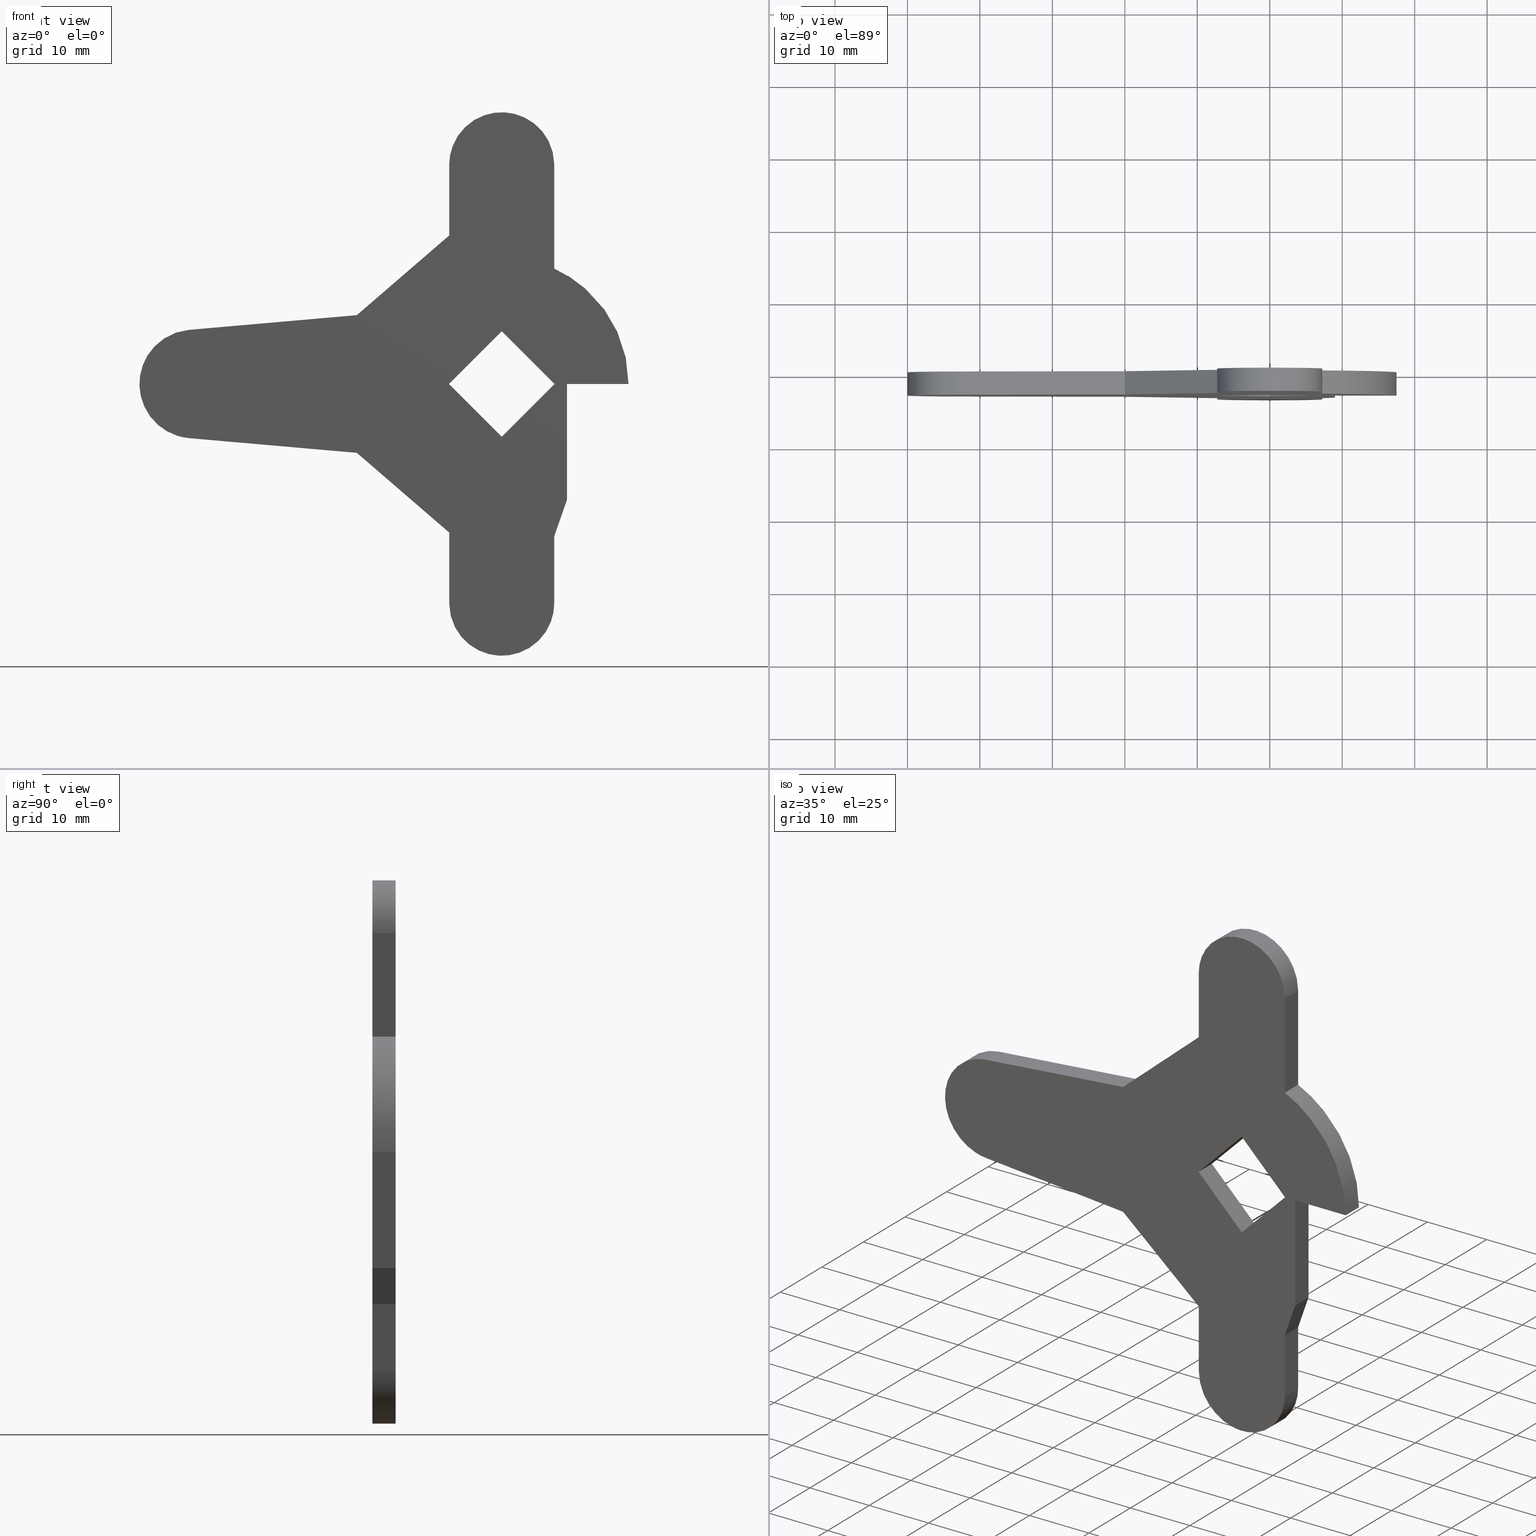
[diagram: canonical four-view strip — front | top / right | iso, engineering-drawing reading convention]
A machine part, canonical four-view strip (front | top / right | iso — engineering-drawing reading convention). The complete STEP part file that produces these views, byte-faithful:
ISO-10303-21;
HEADER;
/****************************************************************
 * Generated by software with PDE/Lib inside                    *
 * PDElib Version 4.4.1-0003, patched  Thursday August 19 11:58 *
 * International Technegroup Inc. (www.iti-oh.com)              *
 ****************************************************************/
FILE_DESCRIPTION((''),'2;1');
FILE_NAME('','2005-10-12T14:38:44',(''),(''),'','CADfix','');
FILE_SCHEMA(('AUTOMOTIVE_DESIGN'));
ENDSEC;
DATA;
#5=APPLICATION_CONTEXT('automotive design');
#6=APPLICATION_PROTOCOL_DEFINITION('Draft International Standard','automotive_design',1998,#5);
#7=PRODUCT_CONTEXT('None',#5,'mechanical');
#8=PRODUCT('cam','','None',(#7));
#9=PRODUCT_RELATED_PRODUCT_CATEGORY('part','description',(#8));
#10=PRODUCT_DEFINITION_FORMATION('None','None',#8);
#11=PRODUCT_DEFINITION_CONTEXT('part definition',#5,'design');
#12=PRODUCT_DEFINITION('None','None',#10,#11);
#18=(NAMED_UNIT(*)PLANE_ANGLE_UNIT()SI_UNIT($,.RADIAN.));
#19=DIMENSIONAL_EXPONENTS(0.0,0.0,0.0,0.0,0.0,0.0,0.0);
#20=PLANE_ANGLE_MEASURE_WITH_UNIT(PLANE_ANGLE_MEASURE(0.017453292500000),#18);
#24=(CONVERSION_BASED_UNIT('DEGREE',#20)NAMED_UNIT(#19)PLANE_ANGLE_UNIT());
#28=(NAMED_UNIT(*)SI_UNIT($,.STERADIAN.)SOLID_ANGLE_UNIT());
#32=(LENGTH_UNIT()NAMED_UNIT(*)SI_UNIT(.MILLI.,.METRE.));
#34=UNCERTAINTY_MEASURE_WITH_UNIT(LENGTH_MEASURE(0.001000000000000),#32,'DISTANCE_ACCURACY_VALUE','');
#36=(GEOMETRIC_REPRESENTATION_CONTEXT(3)GLOBAL_UNCERTAINTY_ASSIGNED_CONTEXT((#34))GLOBAL_UNIT_ASSIGNED_CONTEXT((#24,#28,#32))REPRESENTATION_CONTEXT('None','None'));
#37=AXIS2_PLACEMENT_3D('',#38,#39,#40);
#38=CARTESIAN_POINT('',(0.0,0.0,0.0));
#39=DIRECTION('',(0.0,0.0,1.0));
#40=DIRECTION('',(1.0,0.0,0.0));
#41=ADVANCED_BREP_SHAPE_REPRESENTATION('',(#37,#759),#36);
#42=PRODUCT_DEFINITION_SHAPE('','',#12);
#43=SHAPE_DEFINITION_REPRESENTATION(#42,#41);
#44=CARTESIAN_POINT('',(-53.371669325223742,0.0,41.246249854635423));
#45=CARTESIAN_POINT('',(20.871628794602639,0.0,41.246249854635423));
#46=CARTESIAN_POINT('',(-53.371669325223742,0.0,-41.246251866292177));
#47=CARTESIAN_POINT('',(20.871628794602639,0.0,-41.246251866292177));
#48=B_SPLINE_SURFACE_WITH_KNOTS('',1,1,((#44,#46),(#45,#47)),.UNSPECIFIED.,.F.,.F.,.U.,(2,2),(2,2),(0.0,74.243298119826378),(0.0,82.492501720927606),.UNSPECIFIED.);
#49=CARTESIAN_POINT('',(-20.0,0.0,9.500000000000000));
#50=VERTEX_POINT('',#49);
#51=CARTESIAN_POINT('',(-43.154600000000002,0.0,7.471399999999999));
#52=VERTEX_POINT('',#51);
#53=CARTESIAN_POINT('',(-20.0,0.0,9.500000000000000));
#54=CARTESIAN_POINT('',(-43.154600000000002,0.0,7.471399999999999));
#55=QUASI_UNIFORM_CURVE('',1,(#53,#54),.UNSPECIFIED.,.F.,.U.);
#56=EDGE_CURVE('',#50,#52,#55,.T.);
#57=ORIENTED_EDGE('',*,*,#56,.F.);
#58=CARTESIAN_POINT('',(-7.250000000000100,0.0,20.500000000000000));
#59=VERTEX_POINT('',#58);
#60=CARTESIAN_POINT('',(-7.250000000000100,0.0,20.500000000000000));
#61=CARTESIAN_POINT('',(-20.0,0.0,9.500000000000000));
#62=QUASI_UNIFORM_CURVE('',1,(#60,#61),.UNSPECIFIED.,.F.,.U.);
#63=EDGE_CURVE('',#59,#50,#62,.T.);
#64=ORIENTED_EDGE('',*,*,#63,.F.);
#65=CARTESIAN_POINT('',(-7.250000000000000,0.0,30.250000000000000));
#66=VERTEX_POINT('',#65);
#67=CARTESIAN_POINT('',(-7.250000000000000,0.0,30.250000000000000));
#68=CARTESIAN_POINT('',(-7.250000000000100,0.0,20.500000000000000));
#69=QUASI_UNIFORM_CURVE('',1,(#67,#68),.UNSPECIFIED.,.F.,.U.);
#70=EDGE_CURVE('',#66,#59,#69,.T.);
#71=ORIENTED_EDGE('',*,*,#70,.F.);
#72=CARTESIAN_POINT('',(7.250000000000000,0.0,30.250000000000000));
#73=VERTEX_POINT('',#72);
#74=CARTESIAN_POINT('',(7.250000000000000,0.0,30.250000000000000));
#75=CARTESIAN_POINT('',(7.250000000000000,0.0,37.499999999999993));
#76=CARTESIAN_POINT('',(0.0,0.0,37.500000000000000));
#77=CARTESIAN_POINT('',(-7.250000000000000,0.0,37.499999999999993));
#78=CARTESIAN_POINT('',(-7.250000000000000,0.0,30.250000000000000));
#86=(BOUNDED_CURVE()B_SPLINE_CURVE(2,(#74,#75,#76,#77,#78),.UNSPECIFIED.,.F.,.U.)B_SPLINE_CURVE_WITH_KNOTS((3,2,3),(0.0,0.500000000000000,1.0),.UNSPECIFIED.)CURVE()GEOMETRIC_REPRESENTATION_ITEM()RATIONAL_B_SPLINE_CURVE((1.0,0.707106781186548,1.0,0.707106781186548,1.0))REPRESENTATION_ITEM(''));
#87=EDGE_CURVE('',#73,#66,#86,.T.);
#88=ORIENTED_EDGE('',*,*,#87,.F.);
#89=CARTESIAN_POINT('',(7.250000000000000,0.0,15.927570436196500));
#90=VERTEX_POINT('',#89);
#91=CARTESIAN_POINT('',(7.250000000000000,0.0,15.927570436196500));
#92=CARTESIAN_POINT('',(7.250000000000000,0.0,30.250000000000000));
#93=QUASI_UNIFORM_CURVE('',1,(#91,#92),.UNSPECIFIED.,.F.,.U.);
#94=EDGE_CURVE('',#90,#73,#93,.T.);
#95=ORIENTED_EDGE('',*,*,#94,.F.);
#96=CARTESIAN_POINT('',(17.500000000000000,0.0,0.0));
#97=VERTEX_POINT('',#96);
#98=CARTESIAN_POINT('',(17.500000000000000,0.0,0.0));
#99=CARTESIAN_POINT('',(17.500000000000004,0.0,11.261918490239934));
#100=CARTESIAN_POINT('',(7.250000000000001,0.0,15.927570436196479));
#108=(BOUNDED_CURVE()B_SPLINE_CURVE(2,(#98,#99,#100),.UNSPECIFIED.,.F.,.U.)CURVE()GEOMETRIC_REPRESENTATION_ITEM()QUASI_UNIFORM_CURVE()RATIONAL_B_SPLINE_CURVE((1.0,0.840917865872082,1.0))REPRESENTATION_ITEM(''));
#109=EDGE_CURVE('',#97,#90,#108,.T.);
#110=ORIENTED_EDGE('',*,*,#109,.F.);
#111=CARTESIAN_POINT('',(8.999999999999799,0.0,0.0));
#112=VERTEX_POINT('',#111);
#113=CARTESIAN_POINT('',(8.999999999999799,0.0,0.0));
#114=CARTESIAN_POINT('',(17.500000000000000,0.0,0.0));
#115=QUASI_UNIFORM_CURVE('',1,(#113,#114),.UNSPECIFIED.,.F.,.U.);
#116=EDGE_CURVE('',#112,#97,#115,.T.);
#117=ORIENTED_EDGE('',*,*,#116,.F.);
#118=CARTESIAN_POINT('',(8.999999999999799,0.0,-16.0));
#119=VERTEX_POINT('',#118);
#120=CARTESIAN_POINT('',(8.999999999999799,0.0,-16.0));
#121=CARTESIAN_POINT('',(8.999999999999799,0.0,0.0));
#122=QUASI_UNIFORM_CURVE('',1,(#120,#121),.UNSPECIFIED.,.F.,.U.);
#123=EDGE_CURVE('',#119,#112,#122,.T.);
#124=ORIENTED_EDGE('',*,*,#123,.F.);
#125=CARTESIAN_POINT('',(7.250000000000000,0.0,-21.0));
#126=VERTEX_POINT('',#125);
#127=CARTESIAN_POINT('',(7.250000000000000,0.0,-21.0));
#128=CARTESIAN_POINT('',(8.999999999999799,0.0,-16.0));
#129=QUASI_UNIFORM_CURVE('',1,(#127,#128),.UNSPECIFIED.,.F.,.U.);
#130=EDGE_CURVE('',#126,#119,#129,.T.);
#131=ORIENTED_EDGE('',*,*,#130,.F.);
#132=CARTESIAN_POINT('',(7.250000000000000,0.0,-30.250000000000000));
#133=VERTEX_POINT('',#132);
#134=CARTESIAN_POINT('',(7.250000000000000,0.0,-30.250000000000000));
#135=CARTESIAN_POINT('',(7.250000000000000,0.0,-21.0));
#136=QUASI_UNIFORM_CURVE('',1,(#134,#135),.UNSPECIFIED.,.F.,.U.);
#137=EDGE_CURVE('',#133,#126,#136,.T.);
#138=ORIENTED_EDGE('',*,*,#137,.F.);
#139=CARTESIAN_POINT('',(-7.250000000000100,0.0,-30.250000000000000));
#140=VERTEX_POINT('',#139);
#141=CARTESIAN_POINT('',(-7.250000000000000,0.0,-30.250000000000000));
#142=CARTESIAN_POINT('',(-7.250000000000000,0.0,-37.499999999999993));
#143=CARTESIAN_POINT('',(0.0,0.0,-37.500000000000000));
#144=CARTESIAN_POINT('',(7.250000000000000,0.0,-37.499999999999993));
#145=CARTESIAN_POINT('',(7.250000000000000,0.0,-30.250000000000000));
#153=(BOUNDED_CURVE()B_SPLINE_CURVE(2,(#141,#142,#143,#144,#145),.UNSPECIFIED.,.F.,.U.)B_SPLINE_CURVE_WITH_KNOTS((3,2,3),(0.0,0.500000000000000,1.0),.UNSPECIFIED.)CURVE()GEOMETRIC_REPRESENTATION_ITEM()RATIONAL_B_SPLINE_CURVE((1.0,0.707106781186548,1.0,0.707106781186548,1.0))REPRESENTATION_ITEM(''));
#154=EDGE_CURVE('',#140,#133,#153,.T.);
#155=ORIENTED_EDGE('',*,*,#154,.F.);
#156=CARTESIAN_POINT('',(-7.250000000000100,0.0,-20.500000000000000));
#157=VERTEX_POINT('',#156);
#158=CARTESIAN_POINT('',(-7.250000000000100,0.0,-20.500000000000000));
#159=CARTESIAN_POINT('',(-7.250000000000100,0.0,-30.250000000000000));
#160=QUASI_UNIFORM_CURVE('',1,(#158,#159),.UNSPECIFIED.,.F.,.U.);
#161=EDGE_CURVE('',#157,#140,#160,.T.);
#162=ORIENTED_EDGE('',*,*,#161,.F.);
#163=CARTESIAN_POINT('',(-20.0,0.0,-9.500000000000000));
#164=VERTEX_POINT('',#163);
#165=CARTESIAN_POINT('',(-20.0,0.0,-9.500000000000000));
#166=CARTESIAN_POINT('',(-7.250000000000100,0.0,-20.500000000000000));
#167=QUASI_UNIFORM_CURVE('',1,(#165,#166),.UNSPECIFIED.,.F.,.U.);
#168=EDGE_CURVE('',#164,#157,#167,.T.);
#169=ORIENTED_EDGE('',*,*,#168,.F.);
#170=CARTESIAN_POINT('',(-43.154599881245602,0.0,-7.471400010404210));
#171=VERTEX_POINT('',#170);
#172=CARTESIAN_POINT('',(-43.154599881245602,0.0,-7.471400010404210));
#173=CARTESIAN_POINT('',(-20.0,0.0,-9.500000000000000));
#174=QUASI_UNIFORM_CURVE('',1,(#172,#173),.UNSPECIFIED.,.F.,.U.);
#175=EDGE_CURVE('',#171,#164,#174,.T.);
#176=ORIENTED_EDGE('',*,*,#175,.F.);
#177=CARTESIAN_POINT('',(-43.154600000000002,0.0,7.471399999999992));
#178=CARTESIAN_POINT('',(-50.000041792226938,0.0,6.871663307519408));
#179=CARTESIAN_POINT('',(-50.000041737616002,0.0,-0.000000059604654));
#180=CARTESIAN_POINT('',(-50.000041683005072,0.0,-6.871663426728710));
#181=CARTESIAN_POINT('',(-43.154599881245602,0.0,-7.471400010404211));
#189=(BOUNDED_CURVE()B_SPLINE_CURVE(2,(#177,#178,#179,#180,#181),.UNSPECIFIED.,.F.,.U.)B_SPLINE_CURVE_WITH_KNOTS((3,2,3),(0.0,0.500000000000000,1.0),.UNSPECIFIED.)CURVE()GEOMETRIC_REPRESENTATION_ITEM()RATIONAL_B_SPLINE_CURVE((1.0,0.737318376952824,1.0,0.737318376952824,1.0))REPRESENTATION_ITEM(''));
#190=EDGE_CURVE('',#52,#171,#189,.T.);
#191=ORIENTED_EDGE('',*,*,#190,.F.);
#192=EDGE_LOOP('',(#57,#64,#71,#88,#95,#110,#117,#124,#131,#138,#155,#162,#169,#176,#191));
#193=FACE_OUTER_BOUND('',#192,.T.);
#194=CARTESIAN_POINT('',(-7.283200000000000,0.0,0.0));
#195=VERTEX_POINT('',#194);
#196=CARTESIAN_POINT('',(0.0,0.0,-7.283200000000000));
#197=VERTEX_POINT('',#196);
#198=CARTESIAN_POINT('',(-7.283200000000000,0.0,0.0));
#199=CARTESIAN_POINT('',(0.0,0.0,-7.283200000000000));
#200=QUASI_UNIFORM_CURVE('',1,(#198,#199),.UNSPECIFIED.,.F.,.U.);
#201=EDGE_CURVE('',#195,#197,#200,.T.);
#202=ORIENTED_EDGE('',*,*,#201,.T.);
#203=CARTESIAN_POINT('',(7.283199999999890,0.0,0.0));
#204=VERTEX_POINT('',#203);
#205=CARTESIAN_POINT('',(0.0,0.0,-7.283200000000000));
#206=CARTESIAN_POINT('',(7.283199999999890,0.0,0.0));
#207=QUASI_UNIFORM_CURVE('',1,(#205,#206),.UNSPECIFIED.,.F.,.U.);
#208=EDGE_CURVE('',#197,#204,#207,.T.);
#209=ORIENTED_EDGE('',*,*,#208,.T.);
#210=CARTESIAN_POINT('',(0.0,0.0,7.283200000000000));
#211=VERTEX_POINT('',#210);
#212=CARTESIAN_POINT('',(7.283199999999890,0.0,0.0));
#213=CARTESIAN_POINT('',(0.0,0.0,7.283200000000000));
#214=QUASI_UNIFORM_CURVE('',1,(#212,#213),.UNSPECIFIED.,.F.,.U.);
#215=EDGE_CURVE('',#204,#211,#214,.T.);
#216=ORIENTED_EDGE('',*,*,#215,.T.);
#217=CARTESIAN_POINT('',(0.0,0.0,7.283200000000000));
#218=CARTESIAN_POINT('',(-7.283200000000000,0.0,0.0));
#219=QUASI_UNIFORM_CURVE('',1,(#217,#218),.UNSPECIFIED.,.F.,.U.);
#220=EDGE_CURVE('',#211,#195,#219,.T.);
#221=ORIENTED_EDGE('',*,*,#220,.T.);
#222=EDGE_LOOP('',(#202,#209,#216,#221));
#223=FACE_BOUND('',#222,.T.);
#224=ADVANCED_FACE('',(#193,#223),#48,.T.);
#225=CARTESIAN_POINT('',(-53.371669325223742,-3.199999999999905,41.246249854635423));
#226=CARTESIAN_POINT('',(20.871628794602639,-3.199999999999905,41.246249854635423));
#227=CARTESIAN_POINT('',(-53.371669325223742,-3.199999999999905,-41.246251866292177));
#228=CARTESIAN_POINT('',(20.871628794602639,-3.199999999999905,-41.246251866292177));
#229=B_SPLINE_SURFACE_WITH_KNOTS('',1,1,((#225,#227),(#226,#228)),.UNSPECIFIED.,.F.,.F.,.U.,(2,2),(2,2),(0.0,74.243298119826378),(0.0,82.492501720927606),.UNSPECIFIED.);
#230=CARTESIAN_POINT('',(-20.0,-3.199999999999870,9.500000000000000));
#231=VERTEX_POINT('',#230);
#232=CARTESIAN_POINT('',(-43.154600000000002,-3.199999999999870,7.471399999999999));
#233=VERTEX_POINT('',#232);
#234=CARTESIAN_POINT('',(-20.0,-3.199999999999870,9.500000000000000));
#235=CARTESIAN_POINT('',(-43.154600000000002,-3.199999999999870,7.471399999999999));
#236=QUASI_UNIFORM_CURVE('',1,(#234,#235),.UNSPECIFIED.,.F.,.U.);
#237=EDGE_CURVE('',#231,#233,#236,.T.);
#238=ORIENTED_EDGE('',*,*,#237,.T.);
#239=CARTESIAN_POINT('',(-43.154599881245602,-3.199999999999870,-7.471400010404210));
#240=VERTEX_POINT('',#239);
#241=CARTESIAN_POINT('',(-43.154600000000002,-3.199999999999870,7.471399999999992));
#242=CARTESIAN_POINT('',(-50.000041792226938,-3.199999999999870,6.871663307519408));
#243=CARTESIAN_POINT('',(-50.000041737616002,-3.199999999999870,-0.000000059604654));
#244=CARTESIAN_POINT('',(-50.000041683005072,-3.199999999999870,-6.871663426728710));
#245=CARTESIAN_POINT('',(-43.154599881245602,-3.199999999999870,-7.471400010404211));
#253=(BOUNDED_CURVE()B_SPLINE_CURVE(2,(#241,#242,#243,#244,#245),.UNSPECIFIED.,.F.,.U.)B_SPLINE_CURVE_WITH_KNOTS((3,2,3),(0.0,0.500000000000000,1.0),.UNSPECIFIED.)CURVE()GEOMETRIC_REPRESENTATION_ITEM()RATIONAL_B_SPLINE_CURVE((1.0,0.737318376952824,1.0,0.737318376952824,1.0))REPRESENTATION_ITEM(''));
#254=EDGE_CURVE('',#233,#240,#253,.T.);
#255=ORIENTED_EDGE('',*,*,#254,.T.);
#256=CARTESIAN_POINT('',(-20.0,-3.199999999999870,-9.500000000000000));
#257=VERTEX_POINT('',#256);
#258=CARTESIAN_POINT('',(-43.154599881245602,-3.199999999999870,-7.471400010404210));
#259=CARTESIAN_POINT('',(-20.0,-3.199999999999870,-9.500000000000000));
#260=QUASI_UNIFORM_CURVE('',1,(#258,#259),.UNSPECIFIED.,.F.,.U.);
#261=EDGE_CURVE('',#240,#257,#260,.T.);
#262=ORIENTED_EDGE('',*,*,#261,.T.);
#263=CARTESIAN_POINT('',(-7.250000000000100,-3.199999999999870,-20.500000000000000));
#264=VERTEX_POINT('',#263);
#265=CARTESIAN_POINT('',(-20.0,-3.199999999999870,-9.500000000000000));
#266=CARTESIAN_POINT('',(-7.250000000000100,-3.199999999999870,-20.500000000000000));
#267=QUASI_UNIFORM_CURVE('',1,(#265,#266),.UNSPECIFIED.,.F.,.U.);
#268=EDGE_CURVE('',#257,#264,#267,.T.);
#269=ORIENTED_EDGE('',*,*,#268,.T.);
#270=CARTESIAN_POINT('',(-7.250000000000100,-3.199999999999870,-30.250000000000000));
#271=VERTEX_POINT('',#270);
#272=CARTESIAN_POINT('',(-7.250000000000100,-3.199999999999870,-20.500000000000000));
#273=CARTESIAN_POINT('',(-7.250000000000100,-3.199999999999870,-30.250000000000000));
#274=QUASI_UNIFORM_CURVE('',1,(#272,#273),.UNSPECIFIED.,.F.,.U.);
#275=EDGE_CURVE('',#264,#271,#274,.T.);
#276=ORIENTED_EDGE('',*,*,#275,.T.);
#277=CARTESIAN_POINT('',(7.250000000000000,-3.199999999999870,-30.250000000000000));
#278=VERTEX_POINT('',#277);
#279=CARTESIAN_POINT('',(-7.250000000000000,-3.199999999999870,-30.250000000000000));
#280=CARTESIAN_POINT('',(-7.250000000000000,-3.199999999999870,-37.499999999999993));
#281=CARTESIAN_POINT('',(0.0,-3.199999999999870,-37.500000000000000));
#282=CARTESIAN_POINT('',(7.250000000000000,-3.199999999999870,-37.499999999999993));
#283=CARTESIAN_POINT('',(7.250000000000000,-3.199999999999870,-30.250000000000000));
#291=(BOUNDED_CURVE()B_SPLINE_CURVE(2,(#279,#280,#281,#282,#283),.UNSPECIFIED.,.F.,.U.)B_SPLINE_CURVE_WITH_KNOTS((3,2,3),(0.0,0.500000000000000,1.0),.UNSPECIFIED.)CURVE()GEOMETRIC_REPRESENTATION_ITEM()RATIONAL_B_SPLINE_CURVE((1.0,0.707106781186548,1.0,0.707106781186548,1.0))REPRESENTATION_ITEM(''));
#292=EDGE_CURVE('',#271,#278,#291,.T.);
#293=ORIENTED_EDGE('',*,*,#292,.T.);
#294=CARTESIAN_POINT('',(7.250000000000000,-3.199999999999870,-21.0));
#295=VERTEX_POINT('',#294);
#296=CARTESIAN_POINT('',(7.250000000000000,-3.199999999999870,-30.250000000000000));
#297=CARTESIAN_POINT('',(7.250000000000000,-3.199999999999870,-21.0));
#298=QUASI_UNIFORM_CURVE('',1,(#296,#297),.UNSPECIFIED.,.F.,.U.);
#299=EDGE_CURVE('',#278,#295,#298,.T.);
#300=ORIENTED_EDGE('',*,*,#299,.T.);
#301=CARTESIAN_POINT('',(8.999999999999799,-3.199999999999870,-16.0));
#302=VERTEX_POINT('',#301);
#303=CARTESIAN_POINT('',(7.250000000000000,-3.199999999999870,-21.0));
#304=CARTESIAN_POINT('',(8.999999999999799,-3.199999999999870,-16.0));
#305=QUASI_UNIFORM_CURVE('',1,(#303,#304),.UNSPECIFIED.,.F.,.U.);
#306=EDGE_CURVE('',#295,#302,#305,.T.);
#307=ORIENTED_EDGE('',*,*,#306,.T.);
#308=CARTESIAN_POINT('',(8.999999999999799,-3.199999999999870,0.0));
#309=VERTEX_POINT('',#308);
#310=CARTESIAN_POINT('',(8.999999999999799,-3.199999999999870,-16.0));
#311=CARTESIAN_POINT('',(8.999999999999799,-3.199999999999870,0.0));
#312=QUASI_UNIFORM_CURVE('',1,(#310,#311),.UNSPECIFIED.,.F.,.U.);
#313=EDGE_CURVE('',#302,#309,#312,.T.);
#314=ORIENTED_EDGE('',*,*,#313,.T.);
#315=CARTESIAN_POINT('',(17.500000000000000,-3.199999999999870,0.0));
#316=VERTEX_POINT('',#315);
#317=CARTESIAN_POINT('',(8.999999999999799,-3.199999999999870,0.0));
#318=CARTESIAN_POINT('',(17.500000000000000,-3.199999999999870,0.0));
#319=QUASI_UNIFORM_CURVE('',1,(#317,#318),.UNSPECIFIED.,.F.,.U.);
#320=EDGE_CURVE('',#309,#316,#319,.T.);
#321=ORIENTED_EDGE('',*,*,#320,.T.);
#322=CARTESIAN_POINT('',(7.250000000000000,-3.199999999999870,15.927570436196500));
#323=VERTEX_POINT('',#322);
#324=CARTESIAN_POINT('',(17.500000000000000,-3.199999999999870,0.0));
#325=CARTESIAN_POINT('',(17.500000000000004,-3.199999999999871,11.261918490239934));
#326=CARTESIAN_POINT('',(7.250000000000001,-3.199999999999870,15.927570436196479));
#334=(BOUNDED_CURVE()B_SPLINE_CURVE(2,(#324,#325,#326),.UNSPECIFIED.,.F.,.U.)CURVE()GEOMETRIC_REPRESENTATION_ITEM()QUASI_UNIFORM_CURVE()RATIONAL_B_SPLINE_CURVE((1.0,0.840917865872082,1.0))REPRESENTATION_ITEM(''));
#335=EDGE_CURVE('',#316,#323,#334,.T.);
#336=ORIENTED_EDGE('',*,*,#335,.T.);
#337=CARTESIAN_POINT('',(7.250000000000000,-3.199999999999870,30.250000000000000));
#338=VERTEX_POINT('',#337);
#339=CARTESIAN_POINT('',(7.250000000000000,-3.199999999999870,15.927570436196500));
#340=CARTESIAN_POINT('',(7.250000000000000,-3.199999999999870,30.250000000000000));
#341=QUASI_UNIFORM_CURVE('',1,(#339,#340),.UNSPECIFIED.,.F.,.U.);
#342=EDGE_CURVE('',#323,#338,#341,.T.);
#343=ORIENTED_EDGE('',*,*,#342,.T.);
#344=CARTESIAN_POINT('',(-7.250000000000000,-3.199999999999870,30.250000000000000));
#345=VERTEX_POINT('',#344);
#346=CARTESIAN_POINT('',(7.250000000000000,-3.199999999999870,30.250000000000000));
#347=CARTESIAN_POINT('',(7.250000000000000,-3.199999999999870,37.499999999999993));
#348=CARTESIAN_POINT('',(0.0,-3.199999999999870,37.500000000000000));
#349=CARTESIAN_POINT('',(-7.250000000000000,-3.199999999999870,37.499999999999993));
#350=CARTESIAN_POINT('',(-7.250000000000000,-3.199999999999870,30.250000000000000));
#358=(BOUNDED_CURVE()B_SPLINE_CURVE(2,(#346,#347,#348,#349,#350),.UNSPECIFIED.,.F.,.U.)B_SPLINE_CURVE_WITH_KNOTS((3,2,3),(0.0,0.500000000000000,1.0),.UNSPECIFIED.)CURVE()GEOMETRIC_REPRESENTATION_ITEM()RATIONAL_B_SPLINE_CURVE((1.0,0.707106781186548,1.0,0.707106781186548,1.0))REPRESENTATION_ITEM(''));
#359=EDGE_CURVE('',#338,#345,#358,.T.);
#360=ORIENTED_EDGE('',*,*,#359,.T.);
#361=CARTESIAN_POINT('',(-7.250000000000100,-3.199999999999870,20.500000000000000));
#362=VERTEX_POINT('',#361);
#363=CARTESIAN_POINT('',(-7.250000000000000,-3.199999999999870,30.250000000000000));
#364=CARTESIAN_POINT('',(-7.250000000000100,-3.199999999999870,20.500000000000000));
#365=QUASI_UNIFORM_CURVE('',1,(#363,#364),.UNSPECIFIED.,.F.,.U.);
#366=EDGE_CURVE('',#345,#362,#365,.T.);
#367=ORIENTED_EDGE('',*,*,#366,.T.);
#368=CARTESIAN_POINT('',(-7.250000000000100,-3.199999999999870,20.500000000000000));
#369=CARTESIAN_POINT('',(-20.0,-3.199999999999870,9.500000000000000));
#370=QUASI_UNIFORM_CURVE('',1,(#368,#369),.UNSPECIFIED.,.F.,.U.);
#371=EDGE_CURVE('',#362,#231,#370,.T.);
#372=ORIENTED_EDGE('',*,*,#371,.T.);
#373=EDGE_LOOP('',(#238,#255,#262,#269,#276,#293,#300,#307,#314,#321,#336,#343,#360,#367,#372));
#374=FACE_OUTER_BOUND('',#373,.T.);
#375=CARTESIAN_POINT('',(-7.283200000000000,-3.199999999999870,0.0));
#376=VERTEX_POINT('',#375);
#377=CARTESIAN_POINT('',(0.0,-3.199999999999870,-7.283200000000000));
#378=VERTEX_POINT('',#377);
#379=CARTESIAN_POINT('',(-7.283200000000000,-3.199999999999870,0.0));
#380=CARTESIAN_POINT('',(0.0,-3.199999999999870,-7.283200000000000));
#381=QUASI_UNIFORM_CURVE('',1,(#379,#380),.UNSPECIFIED.,.F.,.U.);
#382=EDGE_CURVE('',#376,#378,#381,.T.);
#383=ORIENTED_EDGE('',*,*,#382,.F.);
#384=CARTESIAN_POINT('',(0.0,-3.199999999999870,7.283200000000000));
#385=VERTEX_POINT('',#384);
#386=CARTESIAN_POINT('',(0.0,-3.199999999999870,7.283200000000000));
#387=CARTESIAN_POINT('',(-7.283200000000000,-3.199999999999870,0.0));
#388=QUASI_UNIFORM_CURVE('',1,(#386,#387),.UNSPECIFIED.,.F.,.U.);
#389=EDGE_CURVE('',#385,#376,#388,.T.);
#390=ORIENTED_EDGE('',*,*,#389,.F.);
#391=CARTESIAN_POINT('',(7.283199999999890,-3.199999999999870,0.0));
#392=VERTEX_POINT('',#391);
#393=CARTESIAN_POINT('',(7.283199999999890,-3.199999999999870,0.0));
#394=CARTESIAN_POINT('',(0.0,-3.199999999999870,7.283200000000000));
#395=QUASI_UNIFORM_CURVE('',1,(#393,#394),.UNSPECIFIED.,.F.,.U.);
#396=EDGE_CURVE('',#392,#385,#395,.T.);
#397=ORIENTED_EDGE('',*,*,#396,.F.);
#398=CARTESIAN_POINT('',(0.0,-3.199999999999870,-7.283200000000000));
#399=CARTESIAN_POINT('',(7.283199999999890,-3.199999999999870,0.0));
#400=QUASI_UNIFORM_CURVE('',1,(#398,#399),.UNSPECIFIED.,.F.,.U.);
#401=EDGE_CURVE('',#378,#392,#400,.T.);
#402=ORIENTED_EDGE('',*,*,#401,.F.);
#403=EDGE_LOOP('',(#383,#390,#397,#402));
#404=FACE_BOUND('',#403,.T.);
#405=ADVANCED_FACE('',(#374,#404),#229,.F.);
#406=CARTESIAN_POINT('',(-6.613137524712080,-3.359840053876264,21.049449978679871));
#407=CARTESIAN_POINT('',(-20.636862817269670,-3.359840053876264,8.950549726277142));
#408=CARTESIAN_POINT('',(-6.613137524712080,0.159840082486623,21.049449978679871));
#409=CARTESIAN_POINT('',(-20.636862817269670,0.159840082486623,8.950549726277142));
#410=B_SPLINE_SURFACE_WITH_KNOTS('',1,1,((#406,#408),(#407,#409)),.UNSPECIFIED.,.F.,.F.,.U.,(2,2),(2,2),(0.0,18.521561985931701),(0.0,3.519680136362887),.UNSPECIFIED.);
#411=ORIENTED_EDGE('',*,*,#63,.T.);
#412=CARTESIAN_POINT('',(-20.0,-3.199999999999870,9.500000000000000));
#413=CARTESIAN_POINT('',(-20.0,0.0,9.500000000000000));
#414=QUASI_UNIFORM_CURVE('',1,(#412,#413),.UNSPECIFIED.,.F.,.U.);
#415=EDGE_CURVE('',#231,#50,#414,.T.);
#416=ORIENTED_EDGE('',*,*,#415,.F.);
#417=ORIENTED_EDGE('',*,*,#371,.F.);
#418=CARTESIAN_POINT('',(-7.250000000000100,-3.199999999999870,20.500000000000000));
#419=CARTESIAN_POINT('',(-7.250000000000100,0.0,20.500000000000000));
#420=QUASI_UNIFORM_CURVE('',1,(#418,#419),.UNSPECIFIED.,.F.,.U.);
#421=EDGE_CURVE('',#362,#59,#420,.T.);
#422=ORIENTED_EDGE('',*,*,#421,.T.);
#423=EDGE_LOOP('',(#411,#416,#417,#422));
#424=FACE_OUTER_BOUND('',#423,.T.);
#425=ADVANCED_FACE('',(#424),#410,.F.);
#426=CARTESIAN_POINT('',(-0.363795731493562,-3.359840053876265,-7.646995731493568));
#427=CARTESIAN_POINT('',(7.646995471025922,-3.359840053876265,0.363795471026041));
#428=CARTESIAN_POINT('',(-0.363795731493562,0.159840082486623,-7.646995731493569));
#429=CARTESIAN_POINT('',(7.646995471025922,0.159840082486623,0.363795471026041));
#430=B_SPLINE_SURFACE_WITH_KNOTS('',1,1,((#426,#428),(#427,#429)),.UNSPECIFIED.,.F.,.F.,.U.,(2,2),(2,2),(0.0,11.328969563942220),(0.0,3.519680136362887),.UNSPECIFIED.);
#431=ORIENTED_EDGE('',*,*,#208,.F.);
#432=CARTESIAN_POINT('',(0.0,-3.199999999999870,-7.283200000000000));
#433=CARTESIAN_POINT('',(0.0,0.0,-7.283200000000000));
#434=QUASI_UNIFORM_CURVE('',1,(#432,#433),.UNSPECIFIED.,.F.,.U.);
#435=EDGE_CURVE('',#378,#197,#434,.T.);
#436=ORIENTED_EDGE('',*,*,#435,.F.);
#437=ORIENTED_EDGE('',*,*,#401,.T.);
#438=CARTESIAN_POINT('',(7.283199999999890,-3.199999999999870,0.0));
#439=CARTESIAN_POINT('',(7.283199999999890,0.0,0.0));
#440=QUASI_UNIFORM_CURVE('',1,(#438,#439),.UNSPECIFIED.,.F.,.U.);
#441=EDGE_CURVE('',#392,#204,#440,.T.);
#442=ORIENTED_EDGE('',*,*,#441,.T.);
#443=EDGE_LOOP('',(#431,#436,#437,#442));
#444=FACE_OUTER_BOUND('',#443,.T.);
#445=ADVANCED_FACE('',(#444),#430,.T.);
#446=CARTESIAN_POINT('',(7.646995731493454,-3.359840053876265,-0.363795731493569));
#447=CARTESIAN_POINT('',(-0.363795471026043,-3.359840053876265,7.646995471026029));
#448=CARTESIAN_POINT('',(7.646995731493454,0.159840082486623,-0.363795731493569));
#449=CARTESIAN_POINT('',(-0.363795471026043,0.159840082486623,7.646995471026029));
#450=B_SPLINE_SURFACE_WITH_KNOTS('',1,1,((#446,#448),(#447,#449)),.UNSPECIFIED.,.F.,.F.,.U.,(2,2),(2,2),(0.0,11.328969563942220),(0.0,3.519680136362887),.UNSPECIFIED.);
#451=ORIENTED_EDGE('',*,*,#215,.F.);
#452=ORIENTED_EDGE('',*,*,#441,.F.);
#453=ORIENTED_EDGE('',*,*,#396,.T.);
#454=CARTESIAN_POINT('',(0.0,-3.199999999999870,7.283200000000000));
#455=CARTESIAN_POINT('',(0.0,0.0,7.283200000000000));
#456=QUASI_UNIFORM_CURVE('',1,(#454,#455),.UNSPECIFIED.,.F.,.U.);
#457=EDGE_CURVE('',#385,#211,#456,.T.);
#458=ORIENTED_EDGE('',*,*,#457,.T.);
#459=EDGE_LOOP('',(#451,#452,#453,#458));
#460=FACE_OUTER_BOUND('',#459,.T.);
#461=ADVANCED_FACE('',(#460),#450,.T.);
#462=CARTESIAN_POINT('',(0.363795731493569,-3.359840053876265,7.646995731493568));
#463=CARTESIAN_POINT('',(-7.646995471026044,-3.359840053876265,-0.363795471026033));
#464=CARTESIAN_POINT('',(0.363795731493569,0.159840082486623,7.646995731493569));
#465=CARTESIAN_POINT('',(-7.646995471026044,0.159840082486623,-0.363795471026033));
#466=B_SPLINE_SURFACE_WITH_KNOTS('',1,1,((#462,#464),(#463,#465)),.UNSPECIFIED.,.F.,.F.,.U.,(2,2),(2,2),(0.0,11.328969563942300),(0.0,3.519680136362887),.UNSPECIFIED.);
#467=ORIENTED_EDGE('',*,*,#220,.F.);
#468=ORIENTED_EDGE('',*,*,#457,.F.);
#469=ORIENTED_EDGE('',*,*,#389,.T.);
#470=CARTESIAN_POINT('',(-7.283200000000000,-3.199999999999870,0.0));
#471=CARTESIAN_POINT('',(-7.283200000000000,0.0,0.0));
#472=QUASI_UNIFORM_CURVE('',1,(#470,#471),.UNSPECIFIED.,.F.,.U.);
#473=EDGE_CURVE('',#376,#195,#472,.T.);
#474=ORIENTED_EDGE('',*,*,#473,.T.);
#475=EDGE_LOOP('',(#467,#468,#469,#474));
#476=FACE_OUTER_BOUND('',#475,.T.);
#477=ADVANCED_FACE('',(#476),#466,.T.);
#478=CARTESIAN_POINT('',(-7.646995731493568,-3.359840053876264,0.363795731493569));
#479=CARTESIAN_POINT('',(0.363795471026039,-3.359840053876264,-7.646995471026040));
#480=CARTESIAN_POINT('',(-7.646995731493568,0.159840082486623,0.363795731493569));
#481=CARTESIAN_POINT('',(0.363795471026039,0.159840082486623,-7.646995471026040));
#482=B_SPLINE_SURFACE_WITH_KNOTS('',1,1,((#478,#480),(#479,#481)),.UNSPECIFIED.,.F.,.F.,.U.,(2,2),(2,2),(0.0,11.328969563942300),(0.0,3.519680136362887),.UNSPECIFIED.);
#483=ORIENTED_EDGE('',*,*,#201,.F.);
#484=ORIENTED_EDGE('',*,*,#473,.F.);
#485=ORIENTED_EDGE('',*,*,#382,.T.);
#486=ORIENTED_EDGE('',*,*,#435,.T.);
#487=EDGE_LOOP('',(#483,#484,#485,#486));
#488=FACE_OUTER_BOUND('',#487,.T.);
#489=ADVANCED_FACE('',(#488),#482,.T.);
#490=CARTESIAN_POINT('',(-7.250000000000101,-3.359840053876264,30.737012481102610));
#491=CARTESIAN_POINT('',(-7.250000000000101,-3.359840053876264,20.012987257382012));
#492=CARTESIAN_POINT('',(-7.250000000000100,0.159840082486623,30.737012481102610));
#493=CARTESIAN_POINT('',(-7.250000000000100,0.159840082486623,20.012987257382012));
#494=B_SPLINE_SURFACE_WITH_KNOTS('',1,1,((#490,#492),(#491,#493)),.UNSPECIFIED.,.F.,.F.,.U.,(2,2),(2,2),(0.0,10.724025223720609),(0.0,3.519680136362887),.UNSPECIFIED.);
#495=ORIENTED_EDGE('',*,*,#70,.T.);
#496=ORIENTED_EDGE('',*,*,#421,.F.);
#497=ORIENTED_EDGE('',*,*,#366,.F.);
#498=CARTESIAN_POINT('',(-7.250000000000000,-3.199999999999870,30.250000000000000));
#499=CARTESIAN_POINT('',(-7.250000000000000,0.0,30.250000000000000));
#500=QUASI_UNIFORM_CURVE('',1,(#498,#499),.UNSPECIFIED.,.F.,.U.);
#501=EDGE_CURVE('',#345,#66,#500,.T.);
#502=ORIENTED_EDGE('',*,*,#501,.T.);
#503=EDGE_LOOP('',(#495,#496,#497,#502));
#504=FACE_OUTER_BOUND('',#503,.T.);
#505=ADVANCED_FACE('',(#504),#494,.F.);
#506=CARTESIAN_POINT('',(7.247515606072788,-3.279999999999868,30.060217124767910));
#507=CARTESIAN_POINT('',(7.247515606072788,0.081999999999997,30.060217124767910));
#508=CARTESIAN_POINT('',(7.445765383914885,-3.279999999999867,37.631070696534827));
#509=CARTESIAN_POINT('',(7.445765383914885,0.081999999999997,37.631070696534827));
#510=CARTESIAN_POINT('',(-0.126529946670296,-3.279999999999868,37.498895789883832));
#511=CARTESIAN_POINT('',(-0.126529946670296,0.081999999999997,37.498895789883832));
#512=CARTESIAN_POINT('',(-7.698825277255470,-3.279999999999867,37.366720883232837));
#513=CARTESIAN_POINT('',(-7.698825277255470,0.081999999999997,37.366720883232837));
#514=CARTESIAN_POINT('',(-7.236477288558529,-3.279999999999868,29.807398088372299));
#515=CARTESIAN_POINT('',(-7.236477288558529,0.081999999999997,29.807398088372299));
#523=(BOUNDED_SURFACE()B_SPLINE_SURFACE(1,2,((#506,#508,#510,#512,#514),(#507,#509,#511,#513,#515)),.UNSPECIFIED.,.F.,.F.,.U.)B_SPLINE_SURFACE_WITH_KNOTS((2,2),(3,2,3),(0.0,3.361999999999864),(0.0,12.384506775234360,24.769013550468731),.UNSPECIFIED.)GEOMETRIC_REPRESENTATION_ITEM()RATIONAL_B_SPLINE_SURFACE(((1.0,0.691513055782269,1.0,0.691513055782269,1.0),(1.0,0.691513055782269,1.0,0.691513055782269,1.0)))REPRESENTATION_ITEM('')SURFACE());
#524=ORIENTED_EDGE('',*,*,#87,.T.);
#525=ORIENTED_EDGE('',*,*,#501,.F.);
#526=ORIENTED_EDGE('',*,*,#359,.F.);
#527=CARTESIAN_POINT('',(7.250000000000000,-3.199999999999870,30.250000000000000));
#528=CARTESIAN_POINT('',(7.250000000000000,0.0,30.250000000000000));
#529=QUASI_UNIFORM_CURVE('',1,(#527,#528),.UNSPECIFIED.,.F.,.U.);
#530=EDGE_CURVE('',#338,#73,#529,.T.);
#531=ORIENTED_EDGE('',*,*,#530,.T.);
#532=EDGE_LOOP('',(#524,#525,#526,#531));
#533=FACE_OUTER_BOUND('',#532,.T.);
#534=ADVANCED_FACE('',(#533),#523,.T.);
#535=CARTESIAN_POINT('',(7.250000000000000,-3.359840053876264,15.212164972795440));
#536=CARTESIAN_POINT('',(7.250000000000000,-3.359840053876264,30.965405719506059));
#537=CARTESIAN_POINT('',(7.250000000000000,0.159840082486622,15.212164972795440));
#538=CARTESIAN_POINT('',(7.250000000000000,0.159840082486622,30.965405719506059));
#539=B_SPLINE_SURFACE_WITH_KNOTS('',1,1,((#535,#537),(#536,#538)),.UNSPECIFIED.,.F.,.F.,.U.,(2,2),(2,2),(0.0,15.753240746710620),(0.0,3.519680136362887),.UNSPECIFIED.);
#540=ORIENTED_EDGE('',*,*,#94,.T.);
#541=ORIENTED_EDGE('',*,*,#530,.F.);
#542=ORIENTED_EDGE('',*,*,#342,.F.);
#543=CARTESIAN_POINT('',(7.250000000000000,-3.199999999999870,15.927570436196500));
#544=CARTESIAN_POINT('',(7.250000000000000,0.0,15.927570436196500));
#545=QUASI_UNIFORM_CURVE('',1,(#543,#544),.UNSPECIFIED.,.F.,.U.);
#546=EDGE_CURVE('',#323,#90,#545,.T.);
#547=ORIENTED_EDGE('',*,*,#546,.T.);
#548=EDGE_LOOP('',(#540,#541,#542,#547));
#549=FACE_OUTER_BOUND('',#548,.T.);
#550=ADVANCED_FACE('',(#549),#539,.F.);
#551=CARTESIAN_POINT('',(17.499333653622990,-3.279999999999867,-0.152714371221529));
#552=CARTESIAN_POINT('',(17.499333653622990,0.081999999999997,-0.152714371221529));
#553=CARTESIAN_POINT('',(17.604291333068367,-3.279999999999867,11.874244437129949));
#554=CARTESIAN_POINT('',(17.604291333068367,0.081999999999997,11.874244437129949));
#555=CARTESIAN_POINT('',(6.413771467675194,-3.279999999999867,16.282307439685429));
#556=CARTESIAN_POINT('',(6.413771467675194,0.081999999999997,16.282307439685429));
#564=(BOUNDED_SURFACE()B_SPLINE_SURFACE(1,2,((#551,#553,#555),(#552,#554,#556)),.UNSPECIFIED.,.F.,.F.,.U.)B_SPLINE_SURFACE_WITH_KNOTS((2,2),(3,3),(0.0,3.361999999999864),(0.0,21.735577742398160),.UNSPECIFIED.)GEOMETRIC_REPRESENTATION_ITEM()RATIONAL_B_SPLINE_SURFACE(((1.0,0.824126188622016,1.0),(1.0,0.824126188622016,1.0)))REPRESENTATION_ITEM('')SURFACE());
#565=ORIENTED_EDGE('',*,*,#109,.T.);
#566=ORIENTED_EDGE('',*,*,#546,.F.);
#567=ORIENTED_EDGE('',*,*,#335,.F.);
#568=CARTESIAN_POINT('',(17.500000000000000,-3.199999999999870,0.0));
#569=CARTESIAN_POINT('',(17.500000000000000,0.0,0.0));
#570=QUASI_UNIFORM_CURVE('',1,(#568,#569),.UNSPECIFIED.,.F.,.U.);
#571=EDGE_CURVE('',#316,#97,#570,.T.);
#572=ORIENTED_EDGE('',*,*,#571,.T.);
#573=EDGE_LOOP('',(#565,#566,#567,#572));
#574=FACE_OUTER_BOUND('',#573,.T.);
#575=ADVANCED_FACE('',(#574),#564,.T.);
#576=CARTESIAN_POINT('',(8.575425016474437,-3.359840053876264,0.0));
#577=CARTESIAN_POINT('',(17.924575211513130,-3.359840053876264,0.0));
#578=CARTESIAN_POINT('',(8.575425016474437,0.159840082486623,0.0));
#579=CARTESIAN_POINT('',(17.924575211513130,0.159840082486623,0.0));
#580=B_SPLINE_SURFACE_WITH_KNOTS('',1,1,((#576,#578),(#577,#579)),.UNSPECIFIED.,.F.,.F.,.U.,(2,2),(2,2),(0.0,9.349150195038689),(0.0,3.519680136362887),.UNSPECIFIED.);
#581=ORIENTED_EDGE('',*,*,#116,.T.);
#582=ORIENTED_EDGE('',*,*,#571,.F.);
#583=ORIENTED_EDGE('',*,*,#320,.F.);
#584=CARTESIAN_POINT('',(8.999999999999799,-3.199999999999870,0.0));
#585=CARTESIAN_POINT('',(8.999999999999799,0.0,0.0));
#586=QUASI_UNIFORM_CURVE('',1,(#584,#585),.UNSPECIFIED.,.F.,.U.);
#587=EDGE_CURVE('',#309,#112,#586,.T.);
#588=ORIENTED_EDGE('',*,*,#587,.T.);
#589=EDGE_LOOP('',(#581,#582,#583,#588));
#590=FACE_OUTER_BOUND('',#589,.T.);
#591=ADVANCED_FACE('',(#590),#580,.F.);
#592=CARTESIAN_POINT('',(8.999999999999799,-3.359840053876264,-16.799199968988891));
#593=CARTESIAN_POINT('',(8.999999999999799,-3.359840053876264,0.799200398142338));
#594=CARTESIAN_POINT('',(8.999999999999799,0.159840082486623,-16.799199968988891));
#595=CARTESIAN_POINT('',(8.999999999999799,0.159840082486623,0.799200398142338));
#596=B_SPLINE_SURFACE_WITH_KNOTS('',1,1,((#592,#594),(#593,#595)),.UNSPECIFIED.,.F.,.F.,.U.,(2,2),(2,2),(0.0,17.598400367131230),(0.0,3.519680136362887),.UNSPECIFIED.);
#597=ORIENTED_EDGE('',*,*,#123,.T.);
#598=ORIENTED_EDGE('',*,*,#587,.F.);
#599=ORIENTED_EDGE('',*,*,#313,.F.);
#600=CARTESIAN_POINT('',(8.999999999999799,-3.199999999999870,-16.0));
#601=CARTESIAN_POINT('',(8.999999999999799,0.0,-16.0));
#602=QUASI_UNIFORM_CURVE('',1,(#600,#601),.UNSPECIFIED.,.F.,.U.);
#603=EDGE_CURVE('',#302,#119,#602,.T.);
#604=ORIENTED_EDGE('',*,*,#603,.T.);
#605=EDGE_LOOP('',(#597,#598,#599,#604));
#606=FACE_OUTER_BOUND('',#605,.T.);
#607=ADVANCED_FACE('',(#606),#596,.F.);
#608=CARTESIAN_POINT('',(7.162587503391852,-3.359840053876264,-21.249749990309031));
#609=CARTESIAN_POINT('',(9.087412543546607,-3.359840053876264,-15.750249875580520));
#610=CARTESIAN_POINT('',(7.162587503391852,0.159840082486623,-21.249749990309031));
#611=CARTESIAN_POINT('',(9.087412543546607,0.159840082486623,-15.750249875580520));
#612=B_SPLINE_SURFACE_WITH_KNOTS('',1,1,((#608,#610),(#609,#611)),.UNSPECIFIED.,.F.,.F.,.U.,(2,2),(2,2),(0.0,5.826615908664799),(0.0,3.519680136362887),.UNSPECIFIED.);
#613=ORIENTED_EDGE('',*,*,#130,.T.);
#614=ORIENTED_EDGE('',*,*,#603,.F.);
#615=ORIENTED_EDGE('',*,*,#306,.F.);
#616=CARTESIAN_POINT('',(7.250000000000000,-3.199999999999870,-21.0));
#617=CARTESIAN_POINT('',(7.250000000000000,0.0,-21.0));
#618=QUASI_UNIFORM_CURVE('',1,(#616,#617),.UNSPECIFIED.,.F.,.U.);
#619=EDGE_CURVE('',#295,#126,#618,.T.);
#620=ORIENTED_EDGE('',*,*,#619,.T.);
#621=EDGE_LOOP('',(#613,#614,#615,#620));
#622=FACE_OUTER_BOUND('',#621,.T.);
#623=ADVANCED_FACE('',(#622),#612,.F.);
#624=CARTESIAN_POINT('',(7.250000000000000,-3.359840053876264,-30.712037482071711));
#625=CARTESIAN_POINT('',(7.250000000000000,-3.359840053876264,-20.537962269823961));
#626=CARTESIAN_POINT('',(7.250000000000000,0.159840082486623,-30.712037482071711));
#627=CARTESIAN_POINT('',(7.250000000000000,0.159840082486623,-20.537962269823961));
#628=B_SPLINE_SURFACE_WITH_KNOTS('',1,1,((#624,#626),(#625,#627)),.UNSPECIFIED.,.F.,.F.,.U.,(2,2),(2,2),(0.0,10.174075212247750),(0.0,3.519680136362887),.UNSPECIFIED.);
#629=ORIENTED_EDGE('',*,*,#137,.T.);
#630=ORIENTED_EDGE('',*,*,#619,.F.);
#631=ORIENTED_EDGE('',*,*,#299,.F.);
#632=CARTESIAN_POINT('',(7.250000000000000,-3.199999999999870,-30.250000000000000));
#633=CARTESIAN_POINT('',(7.250000000000000,0.0,-30.250000000000000));
#634=QUASI_UNIFORM_CURVE('',1,(#632,#633),.UNSPECIFIED.,.F.,.U.);
#635=EDGE_CURVE('',#278,#133,#634,.T.);
#636=ORIENTED_EDGE('',*,*,#635,.T.);
#637=EDGE_LOOP('',(#629,#630,#631,#636));
#638=FACE_OUTER_BOUND('',#637,.T.);
#639=ADVANCED_FACE('',(#638),#628,.F.);
#640=CARTESIAN_POINT('',(-7.247515606072788,-3.279999999999868,-30.060217124767910));
#641=CARTESIAN_POINT('',(-7.247515606072788,0.081999999999997,-30.060217124767910));
#642=CARTESIAN_POINT('',(-7.445765383914885,-3.279999999999867,-37.631070696534827));
#643=CARTESIAN_POINT('',(-7.445765383914885,0.081999999999997,-37.631070696534827));
#644=CARTESIAN_POINT('',(0.126529946670296,-3.279999999999868,-37.498895789883832));
#645=CARTESIAN_POINT('',(0.126529946670296,0.081999999999997,-37.498895789883832));
#646=CARTESIAN_POINT('',(7.698825277255470,-3.279999999999867,-37.366720883232837));
#647=CARTESIAN_POINT('',(7.698825277255470,0.081999999999997,-37.366720883232837));
#648=CARTESIAN_POINT('',(7.236477288558529,-3.279999999999868,-29.807398088372299));
#649=CARTESIAN_POINT('',(7.236477288558529,0.081999999999997,-29.807398088372299));
#657=(BOUNDED_SURFACE()B_SPLINE_SURFACE(1,2,((#640,#642,#644,#646,#648),(#641,#643,#645,#647,#649)),.UNSPECIFIED.,.F.,.F.,.U.)B_SPLINE_SURFACE_WITH_KNOTS((2,2),(3,2,3),(0.0,3.361999999999864),(0.0,12.384506775234360,24.769013550468731),.UNSPECIFIED.)GEOMETRIC_REPRESENTATION_ITEM()RATIONAL_B_SPLINE_SURFACE(((1.0,0.691513055782269,1.0,0.691513055782269,1.0),(1.0,0.691513055782269,1.0,0.691513055782269,1.0)))REPRESENTATION_ITEM('')SURFACE());
#658=ORIENTED_EDGE('',*,*,#154,.T.);
#659=ORIENTED_EDGE('',*,*,#635,.F.);
#660=ORIENTED_EDGE('',*,*,#292,.F.);
#661=CARTESIAN_POINT('',(-7.250000000000100,-3.199999999999870,-30.250000000000000));
#662=CARTESIAN_POINT('',(-7.250000000000100,0.0,-30.250000000000000));
#663=QUASI_UNIFORM_CURVE('',1,(#661,#662),.UNSPECIFIED.,.F.,.U.);
#664=EDGE_CURVE('',#271,#140,#663,.T.);
#665=ORIENTED_EDGE('',*,*,#664,.T.);
#666=EDGE_LOOP('',(#658,#659,#660,#665));
#667=FACE_OUTER_BOUND('',#666,.T.);
#668=ADVANCED_FACE('',(#667),#657,.T.);
#669=CARTESIAN_POINT('',(-7.250000000000101,-3.359840053876265,-20.012987518897390));
#670=CARTESIAN_POINT('',(-7.250000000000101,-3.359840053876265,-30.737012742617988));
#671=CARTESIAN_POINT('',(-7.250000000000100,0.159840082486623,-20.012987518897390));
#672=CARTESIAN_POINT('',(-7.250000000000100,0.159840082486623,-30.737012742617988));
#673=B_SPLINE_SURFACE_WITH_KNOTS('',1,1,((#669,#671),(#670,#672)),.UNSPECIFIED.,.F.,.F.,.U.,(2,2),(2,2),(0.0,10.724025223720609),(0.0,3.519680136362887),.UNSPECIFIED.);
#674=ORIENTED_EDGE('',*,*,#161,.T.);
#675=ORIENTED_EDGE('',*,*,#664,.F.);
#676=ORIENTED_EDGE('',*,*,#275,.F.);
#677=CARTESIAN_POINT('',(-7.250000000000100,-3.199999999999870,-20.500000000000000));
#678=CARTESIAN_POINT('',(-7.250000000000100,0.0,-20.500000000000000));
#679=QUASI_UNIFORM_CURVE('',1,(#677,#678),.UNSPECIFIED.,.F.,.U.);
#680=EDGE_CURVE('',#264,#157,#679,.T.);
#681=ORIENTED_EDGE('',*,*,#680,.T.);
#682=EDGE_LOOP('',(#674,#675,#676,#681));
#683=FACE_OUTER_BOUND('',#682,.T.);
#684=ADVANCED_FACE('',(#683),#673,.F.);
#685=CARTESIAN_POINT('',(-20.636862475288009,-3.359840053876264,-8.950550021320131));
#686=CARTESIAN_POINT('',(-6.613137182730480,-3.359840053876264,-21.049450273722918));
#687=CARTESIAN_POINT('',(-20.636862475288009,0.159840082486623,-8.950550021320131));
#688=CARTESIAN_POINT('',(-6.613137182730480,0.159840082486623,-21.049450273722918));
#689=B_SPLINE_SURFACE_WITH_KNOTS('',1,1,((#685,#687),(#686,#688)),.UNSPECIFIED.,.F.,.F.,.U.,(2,2),(2,2),(0.0,18.521561985931701),(0.0,3.519680136362887),.UNSPECIFIED.);
#690=ORIENTED_EDGE('',*,*,#168,.T.);
#691=ORIENTED_EDGE('',*,*,#680,.F.);
#692=ORIENTED_EDGE('',*,*,#268,.F.);
#693=CARTESIAN_POINT('',(-20.0,-3.199999999999870,-9.500000000000000));
#694=CARTESIAN_POINT('',(-20.0,0.0,-9.500000000000000));
#695=QUASI_UNIFORM_CURVE('',1,(#693,#694),.UNSPECIFIED.,.F.,.U.);
#696=EDGE_CURVE('',#257,#164,#695,.T.);
#697=ORIENTED_EDGE('',*,*,#696,.T.);
#698=EDGE_LOOP('',(#690,#691,#692,#697));
#699=FACE_OUTER_BOUND('',#698,.T.);
#700=ADVANCED_FACE('',(#699),#689,.F.);
#701=CARTESIAN_POINT('',(-44.311170578923992,-3.359840053876265,-7.370071578157038));
#702=CARTESIAN_POINT('',(-18.843427232139060,-3.359840053876265,-9.601328613618147));
#703=CARTESIAN_POINT('',(-44.311170578923992,0.159840082486623,-7.370071578157038));
#704=CARTESIAN_POINT('',(-18.843427232139060,0.159840082486623,-9.601328613618147));
#705=B_SPLINE_SURFACE_WITH_KNOTS('',1,1,((#701,#703),(#702,#704)),.UNSPECIFIED.,.F.,.F.,.U.,(2,2),(2,2),(0.0,25.565297947334841),(0.0,3.519680136362887),.UNSPECIFIED.);
#706=ORIENTED_EDGE('',*,*,#175,.T.);
#707=ORIENTED_EDGE('',*,*,#696,.F.);
#708=ORIENTED_EDGE('',*,*,#261,.F.);
#709=CARTESIAN_POINT('',(-43.154599881245602,-3.199999999999870,-7.471400010404210));
#710=CARTESIAN_POINT('',(-43.154599881245602,0.0,-7.471400010404210));
#711=QUASI_UNIFORM_CURVE('',1,(#709,#710),.UNSPECIFIED.,.F.,.U.);
#712=EDGE_CURVE('',#240,#171,#711,.T.);
#713=ORIENTED_EDGE('',*,*,#712,.T.);
#714=EDGE_LOOP('',(#706,#707,#708,#713));
#715=FACE_OUTER_BOUND('',#714,.T.);
#716=ADVANCED_FACE('',(#715),#705,.F.);
#717=CARTESIAN_POINT('',(-43.089375638368942,-3.279999999999868,7.476827706472259));
#718=CARTESIAN_POINT('',(-43.089375638368942,0.081999999999997,7.476827706472259));
#719=CARTESIAN_POINT('',(-50.122872823055985,-3.279999999999868,6.922419558153102));
#720=CARTESIAN_POINT('',(-50.122872823055985,0.081999999999997,6.922419558153102));
#721=CARTESIAN_POINT('',(-49.998883488637688,-3.279999999999868,-0.131804544246382));
#722=CARTESIAN_POINT('',(-49.998883488637688,0.081999999999997,-0.131804544246382));
#723=CARTESIAN_POINT('',(-49.874894154219383,-3.279999999999868,-7.186028646645878));
#724=CARTESIAN_POINT('',(-49.874894154219383,0.081999999999997,-7.186028646645878));
#725=CARTESIAN_POINT('',(-42.826258233964062,-3.279999999999868,-7.492920656332885));
#726=CARTESIAN_POINT('',(-42.826258233964062,0.081999999999997,-7.492920656332885));
#734=(BOUNDED_SURFACE()B_SPLINE_SURFACE(1,2,((#717,#719,#721,#723,#725),(#718,#720,#722,#724,#726)),.UNSPECIFIED.,.F.,.F.,.U.)B_SPLINE_SURFACE_WITH_KNOTS((2,2),(3,2,3),(0.0,3.361999999999864),(0.0,11.893015453923510,23.786030907847010),.UNSPECIFIED.)GEOMETRIC_REPRESENTATION_ITEM()RATIONAL_B_SPLINE_SURFACE(((1.0,0.728370969882400,1.0,0.728370969882400,1.0),(1.0,0.728370969882400,1.0,0.728370969882400,1.0)))REPRESENTATION_ITEM('')SURFACE());
#735=ORIENTED_EDGE('',*,*,#190,.T.);
#736=ORIENTED_EDGE('',*,*,#712,.F.);
#737=ORIENTED_EDGE('',*,*,#254,.F.);
#738=CARTESIAN_POINT('',(-43.154600000000002,-3.199999999999870,7.471399999999999));
#739=CARTESIAN_POINT('',(-43.154600000000002,0.0,7.471399999999999));
#740=QUASI_UNIFORM_CURVE('',1,(#738,#739),.UNSPECIFIED.,.F.,.U.);
#741=EDGE_CURVE('',#233,#52,#740,.T.);
#742=ORIENTED_EDGE('',*,*,#741,.T.);
#743=EDGE_LOOP('',(#735,#736,#737,#742));
#744=FACE_OUTER_BOUND('',#743,.T.);
#745=ADVANCED_FACE('',(#744),#734,.T.);
#746=CARTESIAN_POINT('',(-18.843427857602610,-3.359840053876264,9.601328558820596));
#747=CARTESIAN_POINT('',(-44.311171107306130,-3.359840053876264,7.370071531864879));
#748=CARTESIAN_POINT('',(-18.843427857602610,0.159840082486622,9.601328558820596));
#749=CARTESIAN_POINT('',(-44.311171107306130,0.159840082486622,7.370071531864879));
#750=B_SPLINE_SURFACE_WITH_KNOTS('',1,1,((#746,#748),(#747,#749)),.UNSPECIFIED.,.F.,.F.,.U.,(2,2),(2,2),(0.0,25.565297849881560),(0.0,3.519680136362887),.UNSPECIFIED.);
#751=ORIENTED_EDGE('',*,*,#56,.T.);
#752=ORIENTED_EDGE('',*,*,#741,.F.);
#753=ORIENTED_EDGE('',*,*,#237,.F.);
#754=ORIENTED_EDGE('',*,*,#415,.T.);
#755=EDGE_LOOP('',(#751,#752,#753,#754));
#756=FACE_OUTER_BOUND('',#755,.T.);
#757=ADVANCED_FACE('',(#756),#750,.F.);
#758=CLOSED_SHELL('',(#224,#405,#425,#445,#461,#477,#489,#505,#534,#550,#575,#591,#607,#623,#639,#668,#684,#700,#716,#745,#757));
#759=MANIFOLD_SOLID_BREP('cam',#758);
#765=(NAMED_UNIT(*)PLANE_ANGLE_UNIT()SI_UNIT($,.RADIAN.));
#766=DIMENSIONAL_EXPONENTS(0.0,0.0,0.0,0.0,0.0,0.0,0.0);
#767=PLANE_ANGLE_MEASURE_WITH_UNIT(PLANE_ANGLE_MEASURE(0.017453292500000),#765);
#771=(CONVERSION_BASED_UNIT('DEGREE',#767)NAMED_UNIT(#766)PLANE_ANGLE_UNIT());
#775=(NAMED_UNIT(*)SI_UNIT($,.STERADIAN.)SOLID_ANGLE_UNIT());
#779=(LENGTH_UNIT()NAMED_UNIT(*)SI_UNIT(.MILLI.,.METRE.));
#781=UNCERTAINTY_MEASURE_WITH_UNIT(LENGTH_MEASURE(0.001000000000000),#779,'DISTANCE_ACCURACY_VALUE','');
#783=(GEOMETRIC_REPRESENTATION_CONTEXT(3)GLOBAL_UNCERTAINTY_ASSIGNED_CONTEXT((#781))GLOBAL_UNIT_ASSIGNED_CONTEXT((#771,#775,#779))REPRESENTATION_CONTEXT('','3D'));
ENDSEC;
END-ISO-10303-21;
